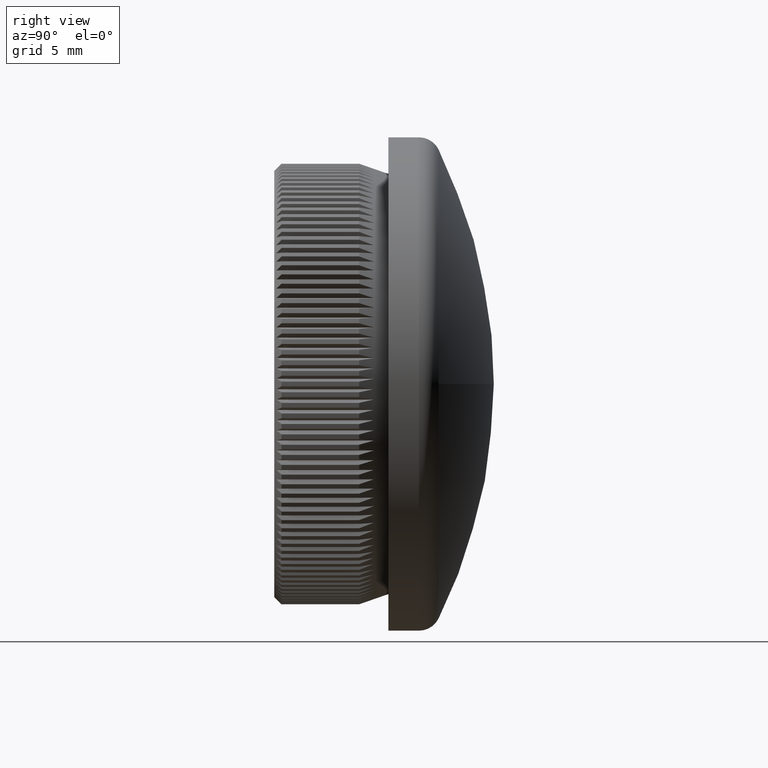
[diagram: clean part render]
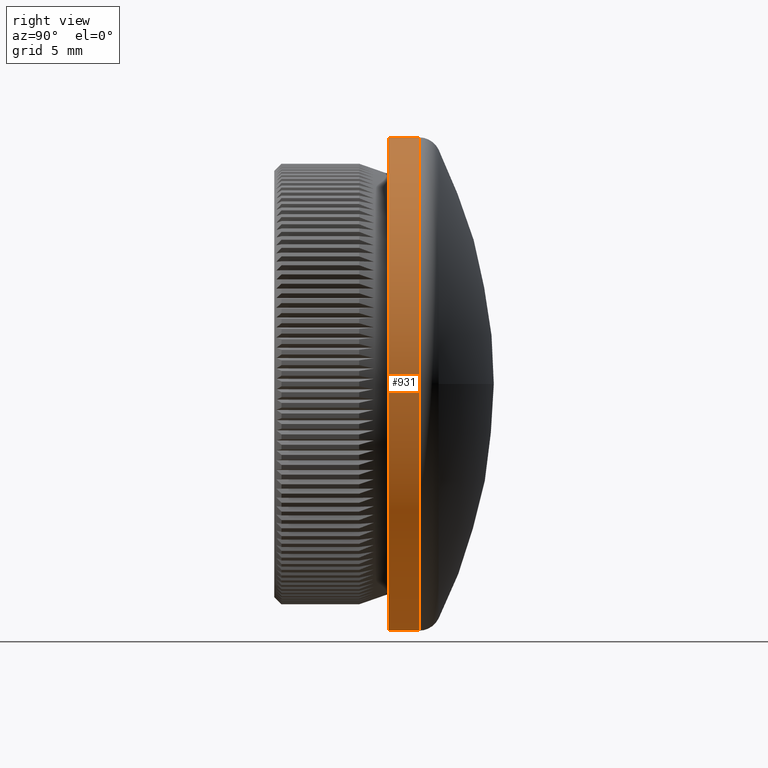
[diagram: same view with one face highlighted and labeled with its STEP entity id]
A machine part, right view. The second image highlights one B-rep face of the part: STEP entity #931.
In plain terms, the highlighted cylindrical surface (partial cylindrical patch) has radius 16.85 mm, axis along (-0, -1, -0).
Its self-contained STEP definition (entity closure, byte-faithful):
#495 = ORIENTED_EDGE ( 'NONE', *, *, #11583, .F. ) ;
#759 = AXIS2_PLACEMENT_3D ( 'NONE', #13599, #7081, #23748 ) ;
#879 = AXIS2_PLACEMENT_3D ( 'NONE', #21063, #6825, #18913 ) ;
#931 = ADVANCED_FACE ( 'NONE', ( #21698 ), #8863, .T. ) ;
#1295 = CARTESIAN_POINT ( 'NONE',  ( 0.0000000000000000000, 7.799999999999999800, -16.85000000000000100 ) ) ;
#2246 = CIRCLE ( 'NONE', #16762, 16.85000000000000500 ) ;
#2568 = CARTESIAN_POINT ( 'NONE',  ( 2.063529856563290600E-015, 0.0000000000000000000, 16.85000000000000500 ) ) ;
#3723 = CARTESIAN_POINT ( 'NONE',  ( 2.063529856563290200E-015, 7.799999999999999800, 16.85000000000000100 ) ) ;
#4731 = EDGE_LOOP ( 'NONE', ( #10847, #23913, #495, #6310 ) ) ;
#4874 = VERTEX_POINT ( 'NONE', #13956 ) ;
#5118 = DIRECTION ( 'NONE',  ( -0.0000000000000000000, -1.000000000000000000, -0.0000000000000000000 ) ) ;
#6310 = ORIENTED_EDGE ( 'NONE', *, *, #7799, .F. ) ;
#6599 = CARTESIAN_POINT ( 'NONE',  ( 0.0000000000000000000, 9.885380484236923900, -16.85000000000000500 ) ) ;
#6825 = DIRECTION ( 'NONE',  ( -0.0000000000000000000, -1.000000000000000000, -0.0000000000000000000 ) ) ;
#7016 = CIRCLE ( 'NONE', #879, 16.85000000000000100 ) ;
#7081 = DIRECTION ( 'NONE',  ( -0.0000000000000000000, -1.000000000000000000, -0.0000000000000000000 ) ) ;
#7173 = VERTEX_POINT ( 'NONE', #6599 ) ;
#7799 = EDGE_CURVE ( 'NONE', #7173, #24066, #19529, .T. ) ;
#8863 = CYLINDRICAL_SURFACE ( 'NONE', #759, 16.85000000000000500 ) ;
#9715 = EDGE_CURVE ( 'NONE', #7173, #4874, #2246, .T. ) ;
#9819 = LINE ( 'NONE', #2568, #10117 ) ;
#10117 = VECTOR ( 'NONE', #17012, 1000.000000000000000 ) ;
#10847 = ORIENTED_EDGE ( 'NONE', *, *, #9715, .T. ) ;
#11534 = CARTESIAN_POINT ( 'NONE',  ( 0.0000000000000000000, 0.0000000000000000000, -16.85000000000000500 ) ) ;
#11583 = EDGE_CURVE ( 'NONE', #24066, #20630, #7016, .T. ) ;
#13599 = CARTESIAN_POINT ( 'NONE',  ( 0.0000000000000000000, 0.0000000000000000000, 0.0000000000000000000 ) ) ;
#13956 = CARTESIAN_POINT ( 'NONE',  ( 2.063529856563290600E-015, 9.885380484236923900, 16.85000000000000500 ) ) ;
#14414 = EDGE_CURVE ( 'NONE', #4874, #20630, #9819, .T. ) ;
#14822 = DIRECTION ( 'NONE',  ( 0.0000000000000000000, 0.0000000000000000000, -1.000000000000000000 ) ) ;
#16696 = DIRECTION ( 'NONE',  ( -0.0000000000000000000, -1.000000000000000000, -0.0000000000000000000 ) ) ;
#16762 = AXIS2_PLACEMENT_3D ( 'NONE', #25228, #16696, #14822 ) ;
#17012 = DIRECTION ( 'NONE',  ( -0.0000000000000000000, -1.000000000000000000, -0.0000000000000000000 ) ) ;
#18913 = DIRECTION ( 'NONE',  ( 0.0000000000000000000, 0.0000000000000000000, -1.000000000000000000 ) ) ;
#19529 = LINE ( 'NONE', #11534, #25287 ) ;
#20630 = VERTEX_POINT ( 'NONE', #3723 ) ;
#21063 = CARTESIAN_POINT ( 'NONE',  ( 0.0000000000000000000, 7.799999999999999800, 0.0000000000000000000 ) ) ;
#21698 = FACE_OUTER_BOUND ( 'NONE', #4731, .T. ) ;
#23748 = DIRECTION ( 'NONE',  ( 0.0000000000000000000, 0.0000000000000000000, -1.000000000000000000 ) ) ;
#23913 = ORIENTED_EDGE ( 'NONE', *, *, #14414, .T. ) ;
#24066 = VERTEX_POINT ( 'NONE', #1295 ) ;
#25228 = CARTESIAN_POINT ( 'NONE',  ( 0.0000000000000000000, 9.885380484236923900, 0.0000000000000000000 ) ) ;
#25287 = VECTOR ( 'NONE', #5118, 1000.000000000000000 ) ;